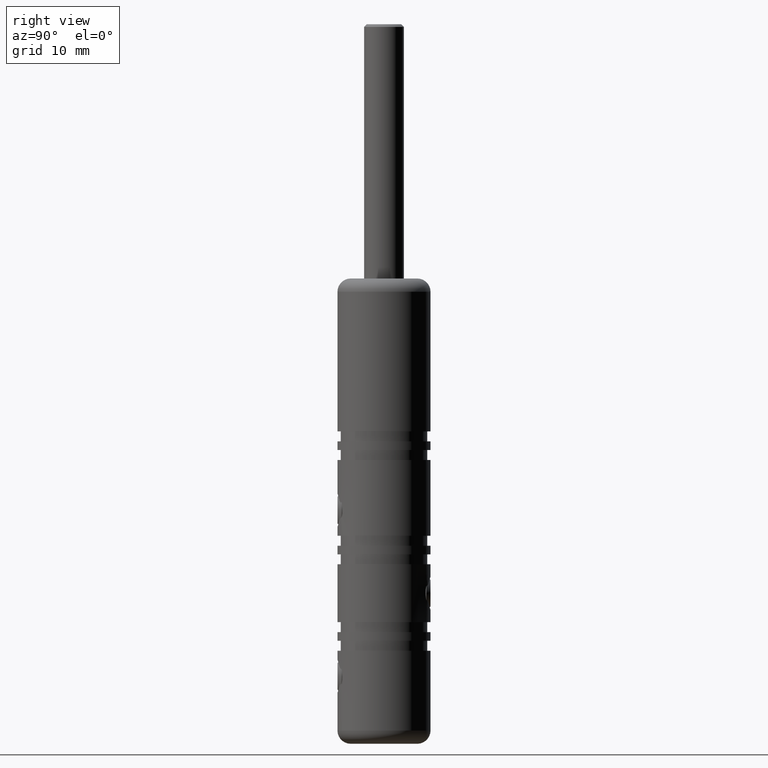
[diagram: clean part render]
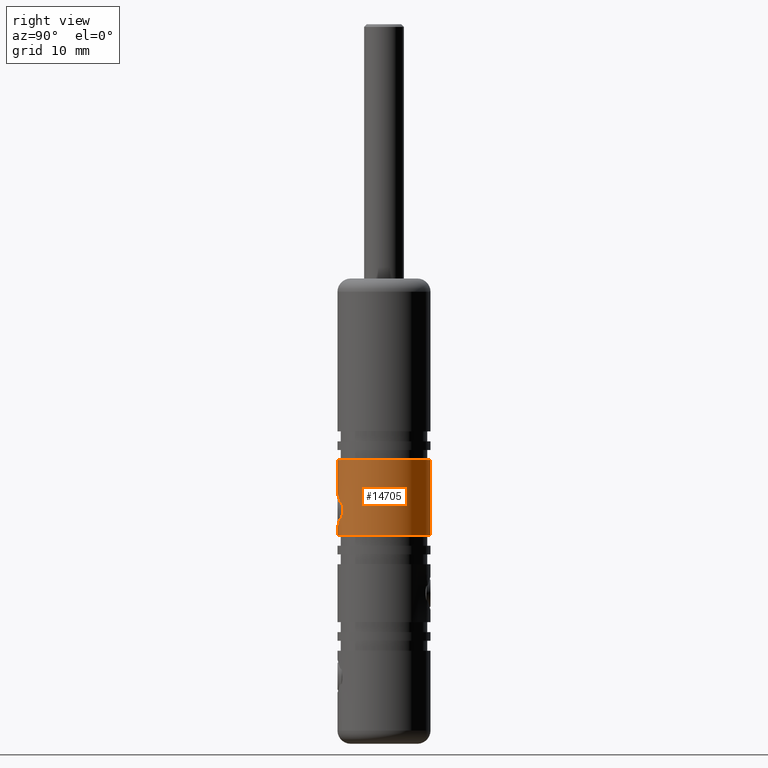
[diagram: same view with one face highlighted and labeled with its STEP entity id]
A machine part, right view. The second image highlights one B-rep face of the part: STEP entity #14705.
In plain terms, the highlighted cylindrical surface (partial cylindrical patch) has radius 7 mm, axis along (0, 0, 1).
Its self-contained STEP definition (entity closure, byte-faithful):
#120 = CARTESIAN_POINT ( 'NONE',  ( 0.0000000000000000000, -6.999999999999982200, -2.350000000000001400 ) ) ;
#136 = VERTEX_POINT ( 'NONE', #16595 ) ;
#239 = LINE ( 'NONE', #4779, #11422 ) ;
#272 = CARTESIAN_POINT ( 'NONE',  ( -1.798192403797702300E-019, -6.999999999999982200, 2.649999999999993200 ) ) ;
#481 = CARTESIAN_POINT ( 'NONE',  ( 0.3301674735900958500, -6.994057350817926500, -2.333493765240084900 ) ) ;
#873 = DIRECTION ( 'NONE',  ( -0.0000000000000000000, 5.987083850887820200E-017, 1.000000000000000000 ) ) ;
#946 = CARTESIAN_POINT ( 'NONE',  ( 0.0000000000000000000, -1.634473891292375600E-015, 7.699999999999998400 ) ) ;
#951 = VERTEX_POINT ( 'NONE', #11612 ) ;
#1448 = VERTEX_POINT ( 'NONE', #15639 ) ;
#1547 = CARTESIAN_POINT ( 'NONE',  ( 1.527991438892423600, -6.832580477855418400, 2.135343630814364100 ) ) ;
#1573 = VECTOR ( 'NONE', #4252, 1000.000000000000000 ) ;
#1600 = CARTESIAN_POINT ( 'NONE',  ( 0.6540352669565761000, -6.971272862623168400, 2.568589119191983200 ) ) ;
#1743 = ORIENTED_EDGE ( 'NONE', *, *, #5708, .F. ) ;
#1757 = DIRECTION ( 'NONE',  ( -0.0000000000000000000, 5.987083850887820200E-017, 1.000000000000000000 ) ) ;
#1928 = VERTEX_POINT ( 'NONE', #11458 ) ;
#2001 = VERTEX_POINT ( 'NONE', #8824 ) ;
#2594 = EDGE_LOOP ( 'NONE', ( #10122, #12304, #4330, #15779, #11595, #1743 ) ) ;
#2913 = CARTESIAN_POINT ( 'NONE',  ( 2.245229635005254300, -6.630490432528295000, 1.261706016111326500 ) ) ;
#2971 = CARTESIAN_POINT ( 'NONE',  ( 0.8104335219852865100, -6.954597428680288300, 2.520641775663659900 ) ) ;
#3207 = LINE ( 'NONE', #10984, #1573 ) ;
#3243 = CARTESIAN_POINT ( 'NONE',  ( 2.166958222436145700, -6.656828098464554700, -1.107352384651682000 ) ) ;
#3476 = CIRCLE ( 'NONE', #11008, 6.999999999999981300 ) ;
#4022 = CARTESIAN_POINT ( 'NONE',  ( 1.112358962610021700, -6.912733571233963500, 2.394861345468886500 ) ) ;
#4252 = DIRECTION ( 'NONE',  ( -0.0000000000000000000, 5.987083850887820200E-017, 1.000000000000000000 ) ) ;
#4330 = ORIENTED_EDGE ( 'NONE', *, *, #14684, .F. ) ;
#4779 = CARTESIAN_POINT ( 'NONE',  ( 8.572527594031448500E-016, 6.999999999999980500, 35.00000000000000000 ) ) ;
#4860 = DIRECTION ( 'NONE',  ( -0.0000000000000000000, 5.987083850887820200E-017, 1.000000000000000000 ) ) ;
#5480 = CARTESIAN_POINT ( 'NONE',  ( 1.884049631657650700, -6.742744248813109700, 1.801377948049685900 ) ) ;
#5679 = CIRCLE ( 'NONE', #9949, 6.999999999999979600 ) ;
#5708 = EDGE_CURVE ( 'NONE', #136, #9869, #7180, .T. ) ;
#5758 = CARTESIAN_POINT ( 'NONE',  ( 0.8099226977673380500, -6.954668602191890900, -2.220855774018043200 ) ) ;
#5815 = CARTESIAN_POINT ( 'NONE',  ( 1.255824464353440900, -6.887802824141296300, -2.017769567327756700 ) ) ;
#6118 = CARTESIAN_POINT ( 'NONE',  ( 0.0000000000000000000, -3.851859888774471700E-031, 35.00000000000000000 ) ) ;
#6776 = CARTESIAN_POINT ( 'NONE',  ( 2.167278451630088000, -6.656710233512381300, 1.406614882686321400 ) ) ;
#7051 = CARTESIAN_POINT ( 'NONE',  ( 2.483781276121959500, -6.544618262933107100, -0.1787896067758831300 ) ) ;
#7180 = LINE ( 'NONE', #15229, #9594 ) ;
#7393 = EDGE_CURVE ( 'NONE', #951, #9869, #10731, .T. ) ;
#7447 = EDGE_CURVE ( 'NONE', #136, #2001, #3476, .T. ) ;
#7527 = DIRECTION ( 'NONE',  ( 0.0000000000000000000, -1.000000000000000000, 0.0000000000000000000 ) ) ;
#7873 = AXIS2_PLACEMENT_3D ( 'NONE', #6118, #16533, #15497 ) ;
#8067 = CARTESIAN_POINT ( 'NONE',  ( 2.483372055786517300, -6.544772541226627100, 0.4812229135062432400 ) ) ;
#8291 = CARTESIAN_POINT ( 'NONE',  ( 1.525461260358928600, -6.833146476745657300, -1.837281541565040500 ) ) ;
#8355 = CARTESIAN_POINT ( 'NONE',  ( 1.985071856398521700, -6.713311998948457300, -1.378441258899870200 ) ) ;
#8565 = DIRECTION ( 'NONE',  ( -0.0000000000000000000, 5.987083850887820200E-017, 1.000000000000000000 ) ) ;
#8824 = CARTESIAN_POINT ( 'NONE',  ( 8.572527594031448500E-016, 6.999999999999978700, -3.700000000000009100 ) ) ;
#9318 = CARTESIAN_POINT ( 'NONE',  ( 1.258439323473954800, -6.887324901065287700, 2.316258903935103600 ) ) ;
#9478 = CARTESIAN_POINT ( 'NONE',  ( 2.418950382063303800, -6.568856573578645300, -0.5026492796699213500 ) ) ;
#9594 = VECTOR ( 'NONE', #8565, 1000.000000000000000 ) ;
#9739 = CYLINDRICAL_SURFACE ( 'NONE', #7873, 6.999999999999980500 ) ;
#9869 = VERTEX_POINT ( 'NONE', #120 ) ;
#9949 = AXIS2_PLACEMENT_3D ( 'NONE', #946, #4860, #7527 ) ;
#10122 = ORIENTED_EDGE ( 'NONE', *, *, #7447, .T. ) ;
#10157 = FACE_OUTER_BOUND ( 'NONE', #2594, .T. ) ;
#10651 = CARTESIAN_POINT ( 'NONE',  ( 1.653105218287370400, -6.803049768796539900, 2.032534270372039000 ) ) ;
#10703 = CARTESIAN_POINT ( 'NONE',  ( 2.371318124961758800, -6.586448955240061100, 0.9585769786432174500 ) ) ;
#10731 = B_SPLINE_CURVE_WITH_KNOTS ( 'NONE', 3,
 ( #272, #14637, #11865, #1600, #2971, #4022, #9318, #1547, #10651, #5480, #14583, #6776, #2913, #10703, #15877, #8067, #12027, #13652, #7051, #9478, #13542, #13592, #3243, #8355, #16210, #12362, #8291, #5815, #10919, #5758, #12256, #481, #12130, #16155 ),
 .UNSPECIFIED., .F., .F.,
 ( 4, 2, 2, 2, 2, 2, 2, 2, 2, 2, 2, 2, 2, 2, 2, 2, 4 ),
 ( 0.007881782131916139800, 0.008374279044384806700, 0.008866775956853475300, 0.009359272869322143900, 0.009851769781790812400, 0.01034426669425948100, 0.01083676360672815000, 0.01132926051919681800, 0.01182175743166548700, 0.01231425434413415500, 0.01280675125660282400, 0.01329924816907149300, 0.01379174508154016100, 0.01428424199400883300, 0.01477673890647750200, 0.01526923581894617000, 0.01576173273141483900 ),
 .UNSPECIFIED. ) ;
#10919 = CARTESIAN_POINT ( 'NONE',  ( 1.112900731598805300, -6.912658107000464900, -2.094634455576286600 ) ) ;
#10984 = CARTESIAN_POINT ( 'NONE',  ( 0.0000000000000000000, -6.999999999999980500, 35.00000000000000000 ) ) ;
#11008 = AXIS2_PLACEMENT_3D ( 'NONE', #16045, #1757, #13710 ) ;
#11422 = VECTOR ( 'NONE', #873, 1000.000000000000000 ) ;
#11458 = CARTESIAN_POINT ( 'NONE',  ( 8.572527594031448500E-016, 6.999999999999977800, 7.699999999999998400 ) ) ;
#11595 = ORIENTED_EDGE ( 'NONE', *, *, #7393, .T. ) ;
#11612 = CARTESIAN_POINT ( 'NONE',  ( -1.798192403797702300E-019, -6.999999999999982200, 2.649999999999993200 ) ) ;
#11865 = CARTESIAN_POINT ( 'NONE',  ( 0.3298314055801359100, -6.994113146029470800, 2.633655914532012000 ) ) ;
#12027 = CARTESIAN_POINT ( 'NONE',  ( 2.500047014199537500, -6.538330438983353900, 0.3140252304550248400 ) ) ;
#12130 = CARTESIAN_POINT ( 'NONE',  ( 0.1666267040243084300, -6.999999999999983100, -2.350000000000001400 ) ) ;
#12256 = CARTESIAN_POINT ( 'NONE',  ( 0.6509280992271876400, -6.971523606557150600, -2.269306605670252900 ) ) ;
#12304 = ORIENTED_EDGE ( 'NONE', *, *, #13452, .T. ) ;
#12362 = CARTESIAN_POINT ( 'NONE',  ( 1.653060922317841400, -6.803044762777255400, -1.732459643575296800 ) ) ;
#13452 = EDGE_CURVE ( 'NONE', #2001, #1928, #239, .T. ) ;
#13542 = CARTESIAN_POINT ( 'NONE',  ( 2.370298277086189600, -6.586812492170608400, -0.6613322059692579000 ) ) ;
#13592 = CARTESIAN_POINT ( 'NONE',  ( 2.244868006902828800, -6.630609350652220800, -0.9622686286975953300 ) ) ;
#13652 = CARTESIAN_POINT ( 'NONE',  ( 2.499952781304059600, -6.538366469829780300, -0.01545525281460364600 ) ) ;
#13710 = DIRECTION ( 'NONE',  ( 0.0000000000000000000, -1.000000000000000000, 6.195440985631470100E-017 ) ) ;
#14583 = CARTESIAN_POINT ( 'NONE',  ( 1.987229336688858300, -6.712660171888023400, 1.675482354434827400 ) ) ;
#14637 = CARTESIAN_POINT ( 'NONE',  ( 0.1641215762601823900, -6.999999999999981300, 2.649999999999993200 ) ) ;
#14684 = EDGE_CURVE ( 'NONE', #1448, #1928, #5679, .T. ) ;
#14705 = ADVANCED_FACE ( 'NONE', ( #10157 ), #9739, .T. ) ;
#15229 = CARTESIAN_POINT ( 'NONE',  ( 0.0000000000000000000, -6.999999999999980500, 35.00000000000000000 ) ) ;
#15497 = DIRECTION ( 'NONE',  ( 0.0000000000000000000, -1.000000000000000000, 0.0000000000000000000 ) ) ;
#15639 = CARTESIAN_POINT ( 'NONE',  ( 0.0000000000000000000, -6.999999999999981300, 7.699999999999998400 ) ) ;
#15779 = ORIENTED_EDGE ( 'NONE', *, *, #15891, .F. ) ;
#15877 = CARTESIAN_POINT ( 'NONE',  ( 2.418899976427517600, -6.568874126354860900, 0.8025092259362089900 ) ) ;
#15891 = EDGE_CURVE ( 'NONE', #951, #1448, #3207, .T. ) ;
#16045 = CARTESIAN_POINT ( 'NONE',  ( 0.0000000000000000000, -2.317001450293587300E-015, -3.700000000000009100 ) ) ;
#16155 = CARTESIAN_POINT ( 'NONE',  ( 0.0000000000000000000, -6.999999999999982200, -2.350000000000001400 ) ) ;
#16210 = CARTESIAN_POINT ( 'NONE',  ( 1.882267286351115600, -6.743226106247497000, -1.503279947654465400 ) ) ;
#16533 = DIRECTION ( 'NONE',  ( -0.0000000000000000000, 5.987083850887820200E-017, 1.000000000000000000 ) ) ;
#16595 = CARTESIAN_POINT ( 'NONE',  ( 0.0000000000000000000, -6.999999999999984000, -3.700000000000008600 ) ) ;